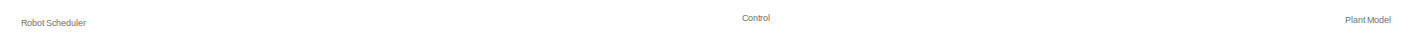
[diagram: root canvas - part 1/3, full width, top band]
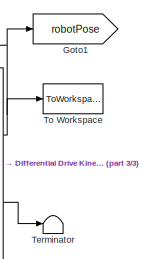
[diagram: root canvas - part 2/3, top right region]
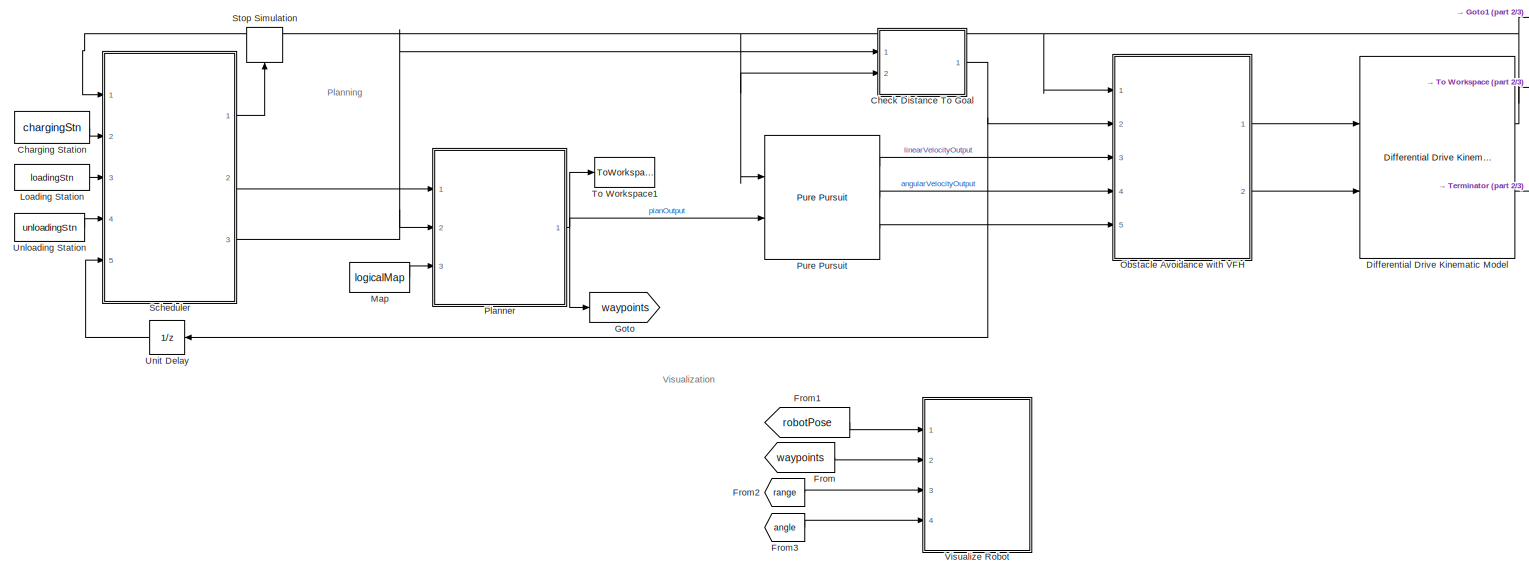
[diagram: root canvas - part 3/3, most of the canvas]
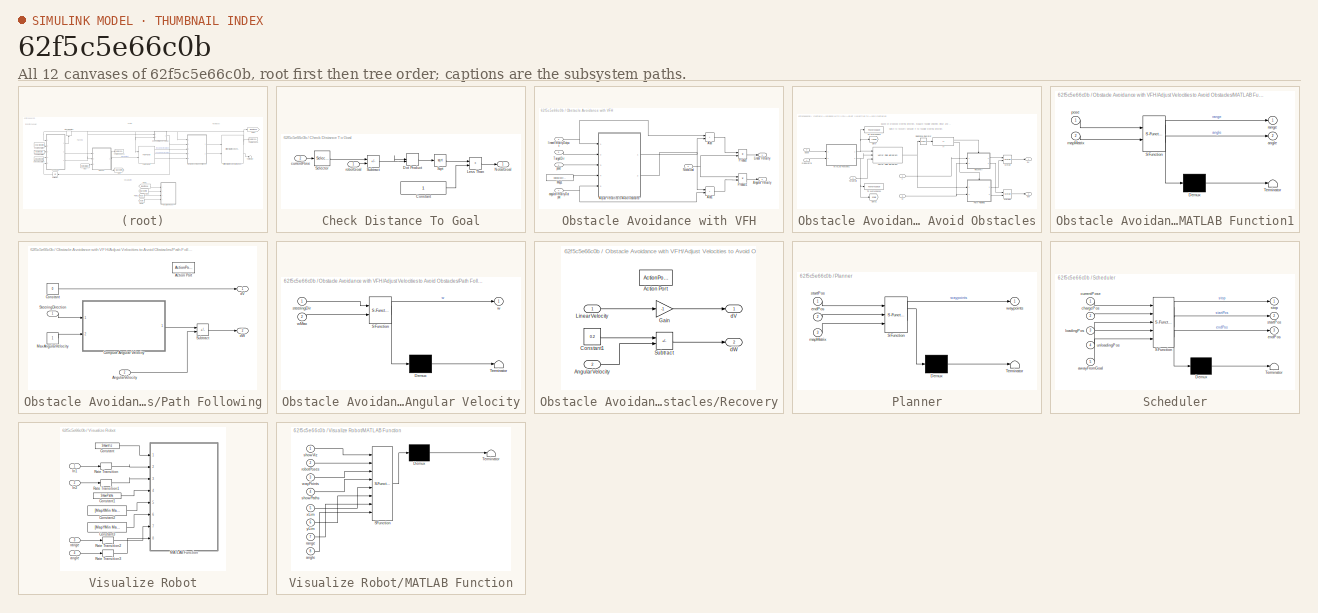
[diagram: thumbnail index - all 12 canvases of the model, root first then tree order]
MODEL slx_62f5c5e66c0b
KIND model
CONFIG AbsTol = auto
CONFIG EnableMultiTasking = off
CONFIG FixedStep = 0.1
CONFIG MaxStep = auto
CONFIG MinStep = auto
CONFIG RelTol = 1e-3
CONFIG SampleTimeConstraint = Unconstrained
CONFIG SolverName = FixedStepAuto
CONFIG StartTime = 0.0
CONFIG StopTime = inf
BLOCK [Constant] Charging Station 
  SampleTime = 1
  Value = chargingStn
BLOCK [SubSystem] Check Distance To Goal
  Ports = [2, 1]
  RequestExecContextInheritance = off
BLOCK [Constant] Check Distance To Goal/Constant
BLOCK [DotProduct] Check Distance To Goal/Dot Product
  OutDataTypeStr = Inherit: Inherit via internal rule
BLOCK [RelationalOperator] Check Distance To Goal/Less Than
  InputSameDT = off
  Operator = >
  OutDataTypeStr = boolean
  Ports = [2, 1]
  RndMeth = Simplest
BLOCK [Outport] Check Distance To Goal/NotatGoal
BLOCK [Selector] Check Distance To Goal/Selector
  IndexOptions = Index vector (dialog)
  Indices = [1 2]
  InputPortWidth = 3
  OutputSizes = 1
  Ports = [1, 1]
BLOCK [Sqrt] Check Distance To Goal/Sqrt
BLOCK [Sum] Check Distance To Goal/Subtract
  IconShape = rectangular
  Inputs = +-
  Ports = [2, 1]
BLOCK [Inport] Check Distance To Goal/currentPose
  Port = 2
BLOCK [Inport] Check Distance To Goal/robotGoal
BLOCK [Reference] Differential Drive Kinematic Model   REF=robotmobilelib/Differential Drive Kinematic Model
  Ports = [2, 2]
  SourceBlock = robotmobilelib/Differential Drive Kinematic Model
  SourceProductName = Robotics System Toolbox
  SourceType = Differential Drive Kinematic Model
BLOCK [From] From
  GotoTag = waypoints
BLOCK [From] From1
  GotoTag = robotPose
BLOCK [From] From2
  GotoTag = range
  TagVisibility = global
BLOCK [From] From3
  GotoTag = angle
  TagVisibility = global
BLOCK [Goto] Goto
  GotoTag = waypoints
BLOCK [Goto] Goto1
  GotoTag = robotPose
BLOCK [Constant] Loading Station
  Value = loadingStn
BLOCK [Constant] Map 
  SampleTime = 1
  Value = logicalMap
BLOCK [SubSystem] Obstacle Avoidance with VFH
  Ports = [5, 2]
  RequestExecContextInheritance = off
BLOCK [Sum] Obstacle Avoidance with VFH/Add
  IconShape = rectangular
  Ports = [2, 1]
BLOCK [Sum] Obstacle Avoidance with VFH/Add1
  IconShape = rectangular
  Ports = [2, 1]
BLOCK [SubSystem] Obstacle Avoidance with VFH/Adjust Velocities to Avoid Obstacles
  Ports = [5, 2]
  RequestExecContextInheritance = off
BLOCK [Goto] Obstacle Avoidance with VFH/Adjust Velocities to Avoid Obstacles/Goto
  GotoTag = range
  TagVisibility = global
BLOCK [Goto] Obstacle Avoidance with VFH/Adjust Velocities to Avoid Obstacles/Goto1
  GotoTag = angle
  TagVisibility = global
BLOCK [If] Obstacle Avoidance with VFH/Adjust Velocities to Avoid Obstacles/If
  IfExpression = u1 == 1
  Ports = [1, 2]
BLOCK [SubSystem] Obstacle Avoidance with VFH/Adjust Velocities to Avoid Obstacles/MATLAB Function1
  ErrorFcn = Stateflow.Translate.translate
  PermitHierarchicalResolution = ExplicitOnly
  Ports = [2, 2]
  RequestExecContextInheritance = off
  SFBlockType = MATLAB Function
  TreatAsAtomicUnit = on
BLOCK [Demux] Obstacle Avoidance with VFH/Adjust Velocities to Avoid Obstacles/MATLAB Function1/ Demux 
  Outputs = 1
  Ports = [1, 1]
BLOCK [S-Function] Obstacle Avoidance with VFH/Adjust Velocities to Avoid Obstacles/MATLAB Function1/ SFunction 
  EnableBusSupport = on
  FunctionName = sf_sfun
  PortCounts = [2 3]
  Ports = [2, 3]
  SFcnIsStateOwnerBlock = off
  SFunctionDeploymentMode = off
  Tag = Stateflow S-Function 4
BLOCK [Terminator] Obstacle Avoidance with VFH/Adjust Velocities to Avoid Obstacles/MATLAB Function1/ Terminator 
BLOCK [Outport] Obstacle Avoidance with VFH/Adjust Velocities to Avoid Obstacles/MATLAB Function1/angle
  Port = 2
BLOCK [Inport] Obstacle Avoidance with VFH/Adjust Velocities to Avoid Obstacles/MATLAB Function1/mapMatrix
  Port = 2
BLOCK [Inport] Obstacle Avoidance with VFH/Adjust Velocities to Avoid Obstacles/MATLAB Function1/pose
BLOCK [Outport] Obstacle Avoidance with VFH/Adjust Velocities to Avoid Obstacles/MATLAB Function1/range
BLOCK [Merge] Obstacle Avoidance with VFH/Adjust Velocities to Avoid Obstacles/Merge
  Ports = [2, 1]
BLOCK [Merge] Obstacle Avoidance with VFH/Adjust Velocities to Avoid Obstacles/Merge1
  Ports = [2, 1]
BLOCK [SubSystem] Obstacle Avoidance with VFH/Adjust Velocities to Avoid Obstacles/Path Following
  Ports = [2, 2, 0, 0, 0, 0, 0, 1]
  RequestExecContextInheritance = off
  TreatAsAtomicUnit = on
BLOCK [ActionPort] Obstacle Avoidance with VFH/Adjust Velocities to Avoid Obstacles/Path Following/Action Port
  ActionPortLabel = else
BLOCK [Inport] Obstacle Avoidance with VFH/Adjust Velocities to Avoid Obstacles/Path Following/AngularVelocity
  Port = 2
BLOCK [SubSystem] Obstacle Avoidance with VFH/Adjust Velocities to Avoid Obstacles/Path Following/Compute Angular Velocity
  ErrorFcn = Stateflow.Translate.translate
  PermitHierarchicalResolution = ExplicitOnly
  Ports = [2, 1]
  RequestExecContextInheritance = off
  SFBlockType = MATLAB Function
  TreatAsAtomicUnit = on
BLOCK [Demux] Obstacle Avoidance with VFH/Adjust Velocities to Avoid Obstacles/Path Following/Compute Angular Velocity/ Demux 
  Outputs = 1
  Ports = [1, 1]
BLOCK [S-Function] Obstacle Avoidance with VFH/Adjust Velocities to Avoid Obstacles/Path Following/Compute Angular Velocity/ SFunction 
  EnableBusSupport = on
  FunctionName = sf_sfun
  PortCounts = [2 2]
  Ports = [2, 2]
  SFcnIsStateOwnerBlock = off
  SFunctionDeploymentMode = off
  Tag = Stateflow S-Function 5
BLOCK [Terminator] Obstacle Avoidance with VFH/Adjust Velocities to Avoid Obstacles/Path Following/Compute Angular Velocity/ Terminator 
BLOCK [Inport] Obstacle Avoidance with VFH/Adjust Velocities to Avoid Obstacles/Path Following/Compute Angular Velocity/steeringDir
BLOCK [Outport] Obstacle Avoidance with VFH/Adjust Velocities to Avoid Obstacles/Path Following/Compute Angular Velocity/w
  VectorParamsAs1DForOutWhenUnconnected = off
BLOCK [Inport] Obstacle Avoidance with VFH/Adjust Velocities to Avoid Obstacles/Path Following/Compute Angular Velocity/wMax
  Port = 2
BLOCK [Constant] Obstacle Avoidance with VFH/Adjust Velocities to Avoid Obstacles/Path Following/Constant
  Value = 0
BLOCK [Constant] Obstacle Avoidance with VFH/Adjust Velocities to Avoid Obstacles/Path Following/MaxAngularVelocity
BLOCK [Inport] Obstacle Avoidance with VFH/Adjust Velocities to Avoid Obstacles/Path Following/SteeringDirection
BLOCK [Sum] Obstacle Avoidance with VFH/Adjust Velocities to Avoid Obstacles/Path Following/Subtract
  IconShape = rectangular
  Inputs = +-
  Ports = [2, 1]
BLOCK [Outport] Obstacle Avoidance with VFH/Adjust Velocities to Avoid Obstacles/Path Following/dV
  VectorParamsAs1DForOutWhenUnconnected = off
BLOCK [Outport] Obstacle Avoidance with VFH/Adjust Velocities to Avoid Obstacles/Path Following/dW
  Port = 2
  VectorParamsAs1DForOutWhenUnconnected = off
BLOCK [SubSystem] Obstacle Avoidance with VFH/Adjust Velocities to Avoid Obstacles/Recovery
  Ports = [2, 2, 0, 0, 0, 0, 0, 1]
  RequestExecContextInheritance = off
  TreatAsAtomicUnit = on
BLOCK [ActionPort] Obstacle Avoidance with VFH/Adjust Velocities to Avoid Obstacles/Recovery/Action Port
  ActionPortLabel = if(u1 == 1)
BLOCK [Inport] Obstacle Avoidance with VFH/Adjust Velocities to Avoid Obstacles/Recovery/AngularVelocity
  Port = 2
BLOCK [Constant] Obstacle Avoidance with VFH/Adjust Velocities to Avoid Obstacles/Recovery/Constant1
  Value = 0.2
BLOCK [Gain] Obstacle Avoidance with VFH/Adjust Velocities to Avoid Obstacles/Recovery/Gain
  Gain = -1
BLOCK [Inport] Obstacle Avoidance with VFH/Adjust Velocities to Avoid Obstacles/Recovery/LinearVelocity
BLOCK [Sum] Obstacle Avoidance with VFH/Adjust Velocities to Avoid Obstacles/Recovery/Subtract
  IconShape = rectangular
  Inputs = +-
  Ports = [2, 1]
BLOCK [Outport] Obstacle Avoidance with VFH/Adjust Velocities to Avoid Obstacles/Recovery/dV
  VectorParamsAs1DForOutWhenUnconnected = off
BLOCK [Outport] Obstacle Avoidance with VFH/Adjust Velocities to Avoid Obstacles/Recovery/dW
  Port = 2
  VectorParamsAs1DForOutWhenUnconnected = off
BLOCK [RelationalOperator] Obstacle Avoidance with VFH/Adjust Velocities to Avoid Obstacles/Relational Operator
  InputSameDT = off
  Operator = isNaN
  OutDataTypeStr = boolean
  Ports = [1, 1]
  RndMeth = Simplest
BLOCK [Inport] Obstacle Avoidance with VFH/Adjust Velocities to Avoid Obstacles/TargetDir
  Port = 2
BLOCK [ToWorkspace] Obstacle Avoidance with VFH/Adjust Velocities to Avoid Obstacles/To Workspace
  FixptAsFi = on
  MaxDataPoints = inf
  Ports = [1]
  SampleTime = -1
  VariableName = ranges
BLOCK [ToWorkspace] Obstacle Avoidance with VFH/Adjust Velocities to Avoid Obstacles/To Workspace1
  FixptAsFi = on
  MaxDataPoints = inf
  Ports = [1]
  SampleTime = -1
  VariableName = angles
BLOCK [Inport] Obstacle Avoidance with VFH/Adjust Velocities to Avoid Obstacles/V
BLOCK [Reference] Obstacle Avoidance with VFH/Adjust Velocities to Avoid Obstacles/Vector Field Histogram  REF=robotalgslib/Vector Field Histogram
  Ports = [3, 1]
  SourceBlock = robotalgslib/Vector Field Histogram
  SourceProductBaseCode = NV,RO
  SourceType = nav.slalgs.internal.VectorFieldHistogram
BLOCK [Inport] Obstacle Avoidance with VFH/Adjust Velocities to Avoid Obstacles/W
  Port = 5
BLOCK [Outport] Obstacle Avoidance with VFH/Adjust Velocities to Avoid Obstacles/dV
  VectorParamsAs1DForOutWhenUnconnected = off
BLOCK [Outport] Obstacle Avoidance with VFH/Adjust Velocities to Avoid Obstacles/dW
  Port = 2
  VectorParamsAs1DForOutWhenUnconnected = off
BLOCK [Inport] Obstacle Avoidance with VFH/Adjust Velocities to Avoid Obstacles/mapMatrix
  Port = 4
BLOCK [Inport] Obstacle Avoidance with VFH/Adjust Velocities to Avoid Obstacles/pose
  Port = 3
BLOCK [Outport] Obstacle Avoidance with VFH/Angular Velocity
  OutDataTypeStr = double
  Port = 2
BLOCK [Outport] Obstacle Avoidance with VFH/Linear Velocity
  OutDataTypeStr = double
BLOCK [Constant] Obstacle Avoidance with VFH/Map1
  Value = logicalMapObs
BLOCK [Inport] Obstacle Avoidance with VFH/NotatGoal
  Port = 2
BLOCK [Product] Obstacle Avoidance with VFH/Product
  Ports = [2, 1]
BLOCK [Product] Obstacle Avoidance with VFH/Product1
  Ports = [2, 1]
BLOCK [Inport] Obstacle Avoidance with VFH/TargetDir
  Port = 5
BLOCK [Inport] Obstacle Avoidance with VFH/angularVelocityOutput
  Port = 4
BLOCK [Inport] Obstacle Avoidance with VFH/linearVelocityOutput
  Port = 3
BLOCK [Inport] Obstacle Avoidance with VFH/pose
BLOCK [SubSystem] Planner
  ErrorFcn = Stateflow.Translate.translate
  PermitHierarchicalResolution = ExplicitOnly
  Ports = [3, 1]
  RequestExecContextInheritance = off
  SFBlockType = MATLAB Function
  TreatAsAtomicUnit = on
BLOCK [Demux] Planner/ Demux 
  Outputs = 1
  Ports = [1, 1]
BLOCK [S-Function] Planner/ SFunction 
  EnableBusSupport = on
  FunctionName = sf_sfun
  PortCounts = [3 2]
  Ports = [3, 2]
  SFcnIsStateOwnerBlock = off
  SFunctionDeploymentMode = off
  Tag = Stateflow S-Function 1
BLOCK [Terminator] Planner/ Terminator 
BLOCK [Inport] Planner/endPos
  Port = 2
BLOCK [Inport] Planner/mapMatrix
  Port = 3
BLOCK [Inport] Planner/startPos
BLOCK [Outport] Planner/waypoints
  VectorParamsAs1DForOutWhenUnconnected = off
BLOCK [Reference] Pure Pursuit  REF=robotalgslib/Pure Pursuit
  Ports = [2, 3]
  SourceBlock = robotalgslib/Pure Pursuit
  SourceProductBaseCode = NV,RO
  SourceType = nav.slalgs.internal.PurePursuit
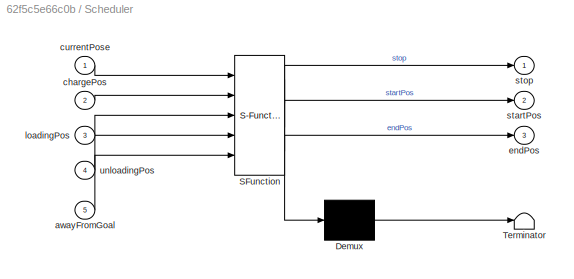
BLOCK [SubSystem] Scheduler
  ErrorFcn = Stateflow.Translate.translate
  PermitHierarchicalResolution = ExplicitOnly
  Ports = [5, 3]
  RequestExecContextInheritance = off
  SFBlockType = Chart
  TreatAsAtomicUnit = on
BLOCK [Demux] Scheduler/ Demux 
  Outputs = 1
  Ports = [1, 1]
BLOCK [S-Function] Scheduler/ SFunction 
  EnableBusSupport = on
  FunctionName = sf_sfun
  PortCounts = [5 4]
  Ports = [5, 4]
  SFcnIsStateOwnerBlock = off
  SFunctionDeploymentMode = off
  Tag = Stateflow S-Function 3
BLOCK [Terminator] Scheduler/ Terminator 
BLOCK [Inport] Scheduler/awayFromGoal
  Port = 5
BLOCK [Inport] Scheduler/chargePos
  Port = 2
BLOCK [Inport] Scheduler/currentPose
BLOCK [Outport] Scheduler/endPos
  Port = 3
  VectorParamsAs1DForOutWhenUnconnected = off
BLOCK [Inport] Scheduler/loadingPos
  Port = 3
BLOCK [Outport] Scheduler/startPos
  Port = 2
  VectorParamsAs1DForOutWhenUnconnected = off
BLOCK [Outport] Scheduler/stop
BLOCK [Inport] Scheduler/unloadingPos
  Port = 4
BLOCK [Stop] Stop Simulation
BLOCK [Terminator] Terminator
BLOCK [ToWorkspace] To Workspace
  FixptAsFi = on
  MaxDataPoints = inf
  Ports = [1]
  SampleTime = -1
  VariableName = Pose
BLOCK [ToWorkspace] To Workspace1
  FixptAsFi = on
  MaxDataPoints = inf
  Ports = [1]
  SampleTime = -1
  VariableName = waypoints
BLOCK [UnitDelay] Unit Delay
  HasFrameUpgradeWarning = on
  SampleTime = -1
BLOCK [Constant] Unloading Station
  SampleTime = 1
  Value = unloadingStn
BLOCK [SubSystem] Visualize Robot
  Ports = [4]
  RequestExecContextInheritance = off
BLOCK [Constant] Visualize Robot/Constant
  Value = ShowViz
BLOCK [Constant] Visualize Robot/Constant1
  Value = ShowPaths
BLOCK [Constant] Visualize Robot/Constant2
  Value = [MapXMin MapXMax]
BLOCK [Constant] Visualize Robot/Constant3
  Value = [MapYMin MapYMax]
BLOCK [Inport] Visualize Robot/In1
BLOCK [Inport] Visualize Robot/In2
  Port = 2
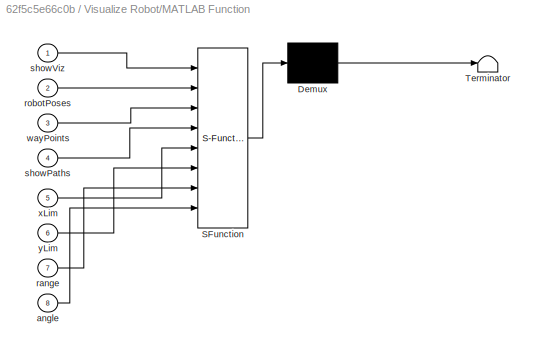
BLOCK [SubSystem] Visualize Robot/MATLAB Function
  ErrorFcn = Stateflow.Translate.translate
  PermitHierarchicalResolution = ExplicitOnly
  Ports = [8]
  RequestExecContextInheritance = off
  SFBlockType = MATLAB Function
  TreatAsAtomicUnit = on
BLOCK [Demux] Visualize Robot/MATLAB Function/ Demux 
  Outputs = 1
  Ports = [1, 1]
BLOCK [S-Function] Visualize Robot/MATLAB Function/ SFunction 
  EnableBusSupport = on
  FunctionName = sf_sfun
  Parameters = ChargingLocation,MeshSelectionIdx,ObstacleLocation,SortingStation,UnloadingStation,logicalMapObs
  PortCounts = [8 1]
  Ports = [8, 1]
  SFcnIsStateOwnerBlock = off
  SFunctionDeploymentMode = off
  Tag = Stateflow S-Function 2
BLOCK [Terminator] Visualize Robot/MATLAB Function/ Terminator 
BLOCK [Inport] Visualize Robot/MATLAB Function/angle
  Port = 8
BLOCK [Inport] Visualize Robot/MATLAB Function/range
  Port = 7
BLOCK [Inport] Visualize Robot/MATLAB Function/robotPoses
  Port = 2
BLOCK [Inport] Visualize Robot/MATLAB Function/showPaths
  Port = 4
BLOCK [Inport] Visualize Robot/MATLAB Function/showViz
BLOCK [Inport] Visualize Robot/MATLAB Function/wayPoints
  Port = 3
BLOCK [Inport] Visualize Robot/MATLAB Function/xLim
  Port = 5
BLOCK [Inport] Visualize Robot/MATLAB Function/yLim
  Port = 6
BLOCK [RateTransition] Visualize Robot/Rate Transition
BLOCK [RateTransition] Visualize Robot/Rate Transition1
BLOCK [RateTransition] Visualize Robot/Rate Transition2
BLOCK [RateTransition] Visualize Robot/Rate Transition3
BLOCK [Inport] Visualize Robot/angle
  Port = 4
BLOCK [Inport] Visualize Robot/range
  Port = 3
ANNOTATION (root): Control
ANNOTATION (root): Planning
ANNOTATION (root): Plant Model
ANNOTATION (root): Robot Scheduler
ANNOTATION (root): Visualization
ANNOTATION Obstacle Avoidance with VFH/Adjust Velocities to Avoid Obstacles: Based on proposed steering direction, evaluate feasible velocities (linear and angular). Switch to recovery behavior if no feasible steering direction.
LINE Charging Station :1 -> Scheduler:2
LINE Check Distance To Goal/Constant:1 -> Check Distance To Goal/Less Than:2
LINE Check Distance To Goal/Dot Product:1 -> Check Distance To Goal/Sqrt:1
LINE Check Distance To Goal/Less Than:1 -> Check Distance To Goal/NotatGoal:1
LINE Check Distance To Goal/Selector:1 -> Check Distance To Goal/Subtract:1
LINE Check Distance To Goal/Sqrt:1 -> Check Distance To Goal/Less Than:1
NET Check Distance To Goal/Subtract:1 -> Check Distance To Goal/Dot Product:1, Check Distance To Goal/Dot Product:2
LINE Check Distance To Goal/currentPose:1 -> Check Distance To Goal/Selector:1
LINE Check Distance To Goal/robotGoal:1 -> Check Distance To Goal/Subtract:2
NET Check Distance To Goal:1 -> Obstacle Avoidance with VFH:2, Unit Delay:1
NET Differential Drive Kinematic Model :1 -> Check Distance To Goal:2, Goto1:1, Obstacle Avoidance with VFH:1, Pure Pursuit:1, Scheduler:1, To Workspace:1
LINE Differential Drive Kinematic Model :2 -> Terminator:1
LINE From1:1 -> Visualize Robot:1
LINE From2:1 -> Visualize Robot:3
LINE From3:1 -> Visualize Robot:4
LINE From:1 -> Visualize Robot:2
LINE Loading Station:1 -> Scheduler:3
LINE Map :1 -> Planner:3
LINE Obstacle Avoidance with VFH/Add1:1 -> Obstacle Avoidance with VFH/Product1:2
LINE Obstacle Avoidance with VFH/Add:1 -> Obstacle Avoidance with VFH/Product:1
LINE Obstacle Avoidance with VFH/Adjust Velocities to Avoid Obstacles/If:1 -> Obstacle Avoidance with VFH/Adjust Velocities to Avoid Obstacles/Recovery:ifaction
LINE Obstacle Avoidance with VFH/Adjust Velocities to Avoid Obstacles/If:2 -> Obstacle Avoidance with VFH/Adjust Velocities to Avoid Obstacles/Path Following:ifaction
NET Obstacle Avoidance with VFH/Adjust Velocities to Avoid Obstacles/MATLAB Function1:1 -> Obstacle Avoidance with VFH/Adjust Velocities to Avoid Obstacles/Goto:1, Obstacle Avoidance with VFH/Adjust Velocities to Avoid Obstacles/To Workspace:1, Obstacle Avoidance with VFH/Adjust Velocities to Avoid Obstacles/Vector Field Histogram:1
NET Obstacle Avoidance with VFH/Adjust Velocities to Avoid Obstacles/MATLAB Function1:2 -> Obstacle Avoidance with VFH/Adjust Velocities to Avoid Obstacles/Goto1:1, Obstacle Avoidance with VFH/Adjust Velocities to Avoid Obstacles/To Workspace1:1, Obstacle Avoidance with VFH/Adjust Velocities to Avoid Obstacles/Vector Field Histogram:2
LINE Obstacle Avoidance with VFH/Adjust Velocities to Avoid Obstacles/Merge1:1 -> Obstacle Avoidance with VFH/Adjust Velocities to Avoid Obstacles/dW:1
LINE Obstacle Avoidance with VFH/Adjust Velocities to Avoid Obstacles/Merge:1 -> Obstacle Avoidance with VFH/Adjust Velocities to Avoid Obstacles/dV:1
LINE Obstacle Avoidance with VFH/Adjust Velocities to Avoid Obstacles/Path Following/AngularVelocity:1 -> Obstacle Avoidance with VFH/Adjust Velocities to Avoid Obstacles/Path Following/Subtract:2
LINE Obstacle Avoidance with VFH/Adjust Velocities to Avoid Obstacles/Path Following/Compute Angular Velocity:1 -> Obstacle Avoidance with VFH/Adjust Velocities to Avoid Obstacles/Path Following/Subtract:1
LINE Obstacle Avoidance with VFH/Adjust Velocities to Avoid Obstacles/Path Following/Constant:1 -> Obstacle Avoidance with VFH/Adjust Velocities to Avoid Obstacles/Path Following/dV:1
LINE Obstacle Avoidance with VFH/Adjust Velocities to Avoid Obstacles/Path Following/MaxAngularVelocity:1 -> Obstacle Avoidance with VFH/Adjust Velocities to Avoid Obstacles/Path Following/Compute Angular Velocity:2
LINE Obstacle Avoidance with VFH/Adjust Velocities to Avoid Obstacles/Path Following/SteeringDirection:1 -> Obstacle Avoidance with VFH/Adjust Velocities to Avoid Obstacles/Path Following/Compute Angular Velocity:1
LINE Obstacle Avoidance with VFH/Adjust Velocities to Avoid Obstacles/Path Following/Subtract:1 -> Obstacle Avoidance with VFH/Adjust Velocities to Avoid Obstacles/Path Following/dW:1
LINE Obstacle Avoidance with VFH/Adjust Velocities to Avoid Obstacles/Path Following:1 -> Obstacle Avoidance with VFH/Adjust Velocities to Avoid Obstacles/Merge:2
LINE Obstacle Avoidance with VFH/Adjust Velocities to Avoid Obstacles/Path Following:2 -> Obstacle Avoidance with VFH/Adjust Velocities to Avoid Obstacles/Merge1:2
LINE Obstacle Avoidance with VFH/Adjust Velocities to Avoid Obstacles/Recovery/AngularVelocity:1 -> Obstacle Avoidance with VFH/Adjust Velocities to Avoid Obstacles/Recovery/Subtract:2
LINE Obstacle Avoidance with VFH/Adjust Velocities to Avoid Obstacles/Recovery/Constant1:1 -> Obstacle Avoidance with VFH/Adjust Velocities to Avoid Obstacles/Recovery/Subtract:1
LINE Obstacle Avoidance with VFH/Adjust Velocities to Avoid Obstacles/Recovery/Gain:1 -> Obstacle Avoidance with VFH/Adjust Velocities to Avoid Obstacles/Recovery/dV:1
LINE Obstacle Avoidance with VFH/Adjust Velocities to Avoid Obstacles/Recovery/LinearVelocity:1 -> Obstacle Avoidance with VFH/Adjust Velocities to Avoid Obstacles/Recovery/Gain:1
LINE Obstacle Avoidance with VFH/Adjust Velocities to Avoid Obstacles/Recovery/Subtract:1 -> Obstacle Avoidance with VFH/Adjust Velocities to Avoid Obstacles/Recovery/dW:1
LINE Obstacle Avoidance with VFH/Adjust Velocities to Avoid Obstacles/Recovery:1 -> Obstacle Avoidance with VFH/Adjust Velocities to Avoid Obstacles/Merge:1
LINE Obstacle Avoidance with VFH/Adjust Velocities to Avoid Obstacles/Recovery:2 -> Obstacle Avoidance with VFH/Adjust Velocities to Avoid Obstacles/Merge1:1
LINE Obstacle Avoidance with VFH/Adjust Velocities to Avoid Obstacles/Relational Operator:1 -> Obstacle Avoidance with VFH/Adjust Velocities to Avoid Obstacles/If:1
LINE Obstacle Avoidance with VFH/Adjust Velocities to Avoid Obstacles/TargetDir:1 -> Obstacle Avoidance with VFH/Adjust Velocities to Avoid Obstacles/Vector Field Histogram:3
LINE Obstacle Avoidance with VFH/Adjust Velocities to Avoid Obstacles/V:1 -> Obstacle Avoidance with VFH/Adjust Velocities to Avoid Obstacles/Recovery:1
NET Obstacle Avoidance with VFH/Adjust Velocities to Avoid Obstacles/Vector Field Histogram:1 -> Obstacle Avoidance with VFH/Adjust Velocities to Avoid Obstacles/Path Following:1, Obstacle Avoidance with VFH/Adjust Velocities to Avoid Obstacles/Relational Operator:1
NET Obstacle Avoidance with VFH/Adjust Velocities to Avoid Obstacles/W:1 -> Obstacle Avoidance with VFH/Adjust Velocities to Avoid Obstacles/Path Following:2, Obstacle Avoidance with VFH/Adjust Velocities to Avoid Obstacles/Recovery:2
LINE Obstacle Avoidance with VFH/Adjust Velocities to Avoid Obstacles/mapMatrix:1 -> Obstacle Avoidance with VFH/Adjust Velocities to Avoid Obstacles/MATLAB Function1:2
LINE Obstacle Avoidance with VFH/Adjust Velocities to Avoid Obstacles/pose:1 -> Obstacle Avoidance with VFH/Adjust Velocities to Avoid Obstacles/MATLAB Function1:1
LINE Obstacle Avoidance with VFH/Adjust Velocities to Avoid Obstacles:1 -> Obstacle Avoidance with VFH/Add:2
LINE Obstacle Avoidance with VFH/Adjust Velocities to Avoid Obstacles:2 -> Obstacle Avoidance with VFH/Add1:1
LINE Obstacle Avoidance with VFH/Map1:1 -> Obstacle Avoidance with VFH/Adjust Velocities to Avoid Obstacles:4
NET Obstacle Avoidance with VFH/NotatGoal:1 -> Obstacle Avoidance with VFH/Product1:1, Obstacle Avoidance with VFH/Product:2
LINE Obstacle Avoidance with VFH/Product1:1 -> Obstacle Avoidance with VFH/Angular Velocity:1
LINE Obstacle Avoidance with VFH/Product:1 -> Obstacle Avoidance with VFH/Linear Velocity:1
LINE Obstacle Avoidance with VFH/TargetDir:1 -> Obstacle Avoidance with VFH/Adjust Velocities to Avoid Obstacles:2
NET Obstacle Avoidance with VFH/angularVelocityOutput:1 -> Obstacle Avoidance with VFH/Add1:2, Obstacle Avoidance with VFH/Adjust Velocities to Avoid Obstacles:5
NET Obstacle Avoidance with VFH/linearVelocityOutput:1 -> Obstacle Avoidance with VFH/Add:1, Obstacle Avoidance with VFH/Adjust Velocities to Avoid Obstacles:1
LINE Obstacle Avoidance with VFH/pose:1 -> Obstacle Avoidance with VFH/Adjust Velocities to Avoid Obstacles:3
LINE Obstacle Avoidance with VFH:1 -> Differential Drive Kinematic Model :1
LINE Obstacle Avoidance with VFH:2 -> Differential Drive Kinematic Model :2
NET Planner:1 -> Goto:1, Pure Pursuit:2, To Workspace1:1
LINE Pure Pursuit:1 -> Obstacle Avoidance with VFH:3
LINE Pure Pursuit:2 -> Obstacle Avoidance with VFH:4
LINE Pure Pursuit:3 -> Obstacle Avoidance with VFH:5
LINE Scheduler:1 -> Stop Simulation:1
LINE Scheduler:2 -> Planner:1
NET Scheduler:3 -> Check Distance To Goal:1, Planner:2
LINE Unit Delay:1 -> Scheduler:5
LINE Unloading Station:1 -> Scheduler:4
LINE Visualize Robot/Constant1:1 -> Visualize Robot/MATLAB Function:4
LINE Visualize Robot/Constant2:1 -> Visualize Robot/MATLAB Function:5
LINE Visualize Robot/Constant3:1 -> Visualize Robot/MATLAB Function:6
LINE Visualize Robot/Constant:1 -> Visualize Robot/MATLAB Function:1
LINE Visualize Robot/In1:1 -> Visualize Robot/Rate Transition:1
LINE Visualize Robot/In2:1 -> Visualize Robot/Rate Transition1:1
LINE Visualize Robot/Rate Transition1:1 -> Visualize Robot/MATLAB Function:3
LINE Visualize Robot/Rate Transition2:1 -> Visualize Robot/MATLAB Function:7
LINE Visualize Robot/Rate Transition3:1 -> Visualize Robot/MATLAB Function:8
LINE Visualize Robot/Rate Transition:1 -> Visualize Robot/MATLAB Function:2
LINE Visualize Robot/angle:1 -> Visualize Robot/Rate Transition3:1
LINE Visualize Robot/range:1 -> Visualize Robot/Rate Transition2:1
note: NET lines group one-source signal fan-out (src -> all destinations, sorted); 1:1 wires keep LINE
CHART Planner states=1 transitions=1
  STATE_LABEL 'eML_blk_kernel()'
  STATE_LABEL 'SCRIPT:\nfunction waypoints = planning(startPos, endPos, mapMatrix)\n\npersistent waypointsInternal\npersistent prevStartPos\npersistent prevEndPos\n\n% Set constant parameters\nmaxNumNodes = 100;\n\n% Initialize persistent variables that are used downstream\nif isempty(prevStartPos)\n    prevStartPos = startPos;\nend\n\nif isempty(prevEndPos)\n    prevEndPos = endPos;\nend\n\nisNewPath = (~isequal(prevStartPos, sta...<+1026ch>'
CHART Visualize Robot/MATLAB Function states=1 transitions=1
  STATE_LABEL 'eML_blk_kernel()'
  STATE_LABEL "SCRIPT:\nfunction simulationVisualization(showViz, robotPoses, wayPoints, logicalMapObs, ChargingLocation, UnloadingStation, SortingStation, showPaths, xLim, yLim, MeshSelectionIdx, range, angle, ObstacleLocation)\n%#codegen\n\n%% Setup\n\ncoder.extrinsic('VisualizeExecuteRobots');\npersistent f\nif isempty(f) && showViz\n    f = figure('units','normalized','outerposition',[0 0 0.75 0.75]);\n    title('Mobi...<+659ch>"
CHART Scheduler states=3 transitions=4
  STATE_LABEL "Unloading\nentry, during:\nendPos = unloadingPos';"
  STATE_LABEL "Loading\nentry,during:\nendPos = loadingPos';"
  STATE_LABEL "Charging\nentry, during:\nendPos = chargePos';"
CHART Obstacle Avoidance with VFH/Adjust Velocities to Avoid Obstacles/MATLAB Function1 states=1 transitions=1
  STATE_LABEL 'eML_blk_kernel()'
  STATE_LABEL "SCRIPT:\nfunction [range, angle]  = RangeSensor(pose, mapMatrix)\npersistent r\nif isempty(r)\n r = rangeSensor('HorizontalAngle', [-pi/2, pi/2], 'HorizontalAngleResolution', pi/20, 'Range', [0 12]);\nend\n[range, angle] = r(pose', binaryOccupancyMap(mapMatrix, 1));\n\n\nend"
CHART Obstacle Avoidance with VFH/Adjust Velocities to Avoid Obstacles/Path Following/Compute Angular Velocity states=1 transitions=1
  STATE_LABEL 'eML_blk_kernel()'
  STATE_LABEL "SCRIPT:\nfunction w = ComputeAngularVelocity(steeringDir, wMax)\n\n% Allow variable input arguments\nif nargin == 1   \n    wMax = inf;\nend\n\nvalidateattributes(steeringDir, {'double'},{'real'},...\n    'exampleHelperComputeAngularVelocity', 'STEERINGDIR', 1);\nvalidateattributes(wMax, {'double'},{'real', 'positive'},...\n    'exampleHelperComputeAngularVelocity', 'WMAX', 2);\n\n% Computing in robot's coordi...<+615ch>"
CHART  states=0 transitions=0
CHART  states=0 transitions=0
CHART  states=0 transitions=0
CHART  states=0 transitions=0
CHART  states=0 transitions=0
